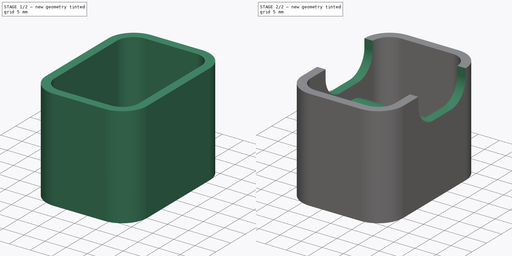
[diagram: build sequence overview — one tinted view per stage of 2, left to right]
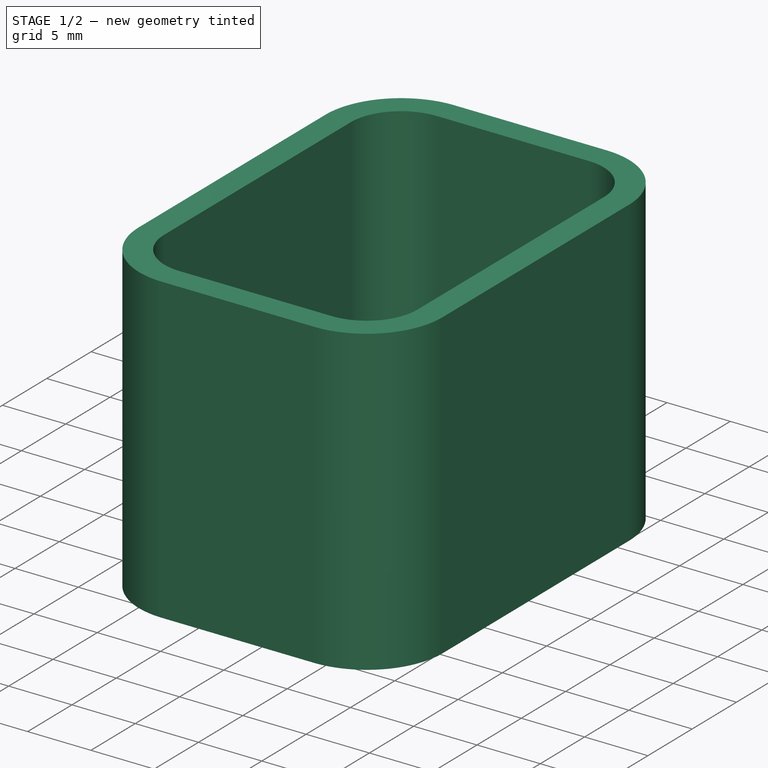
[diagram: stage 1 of 2 — iso view after this stage's code; geometry added in this stage tinted green]
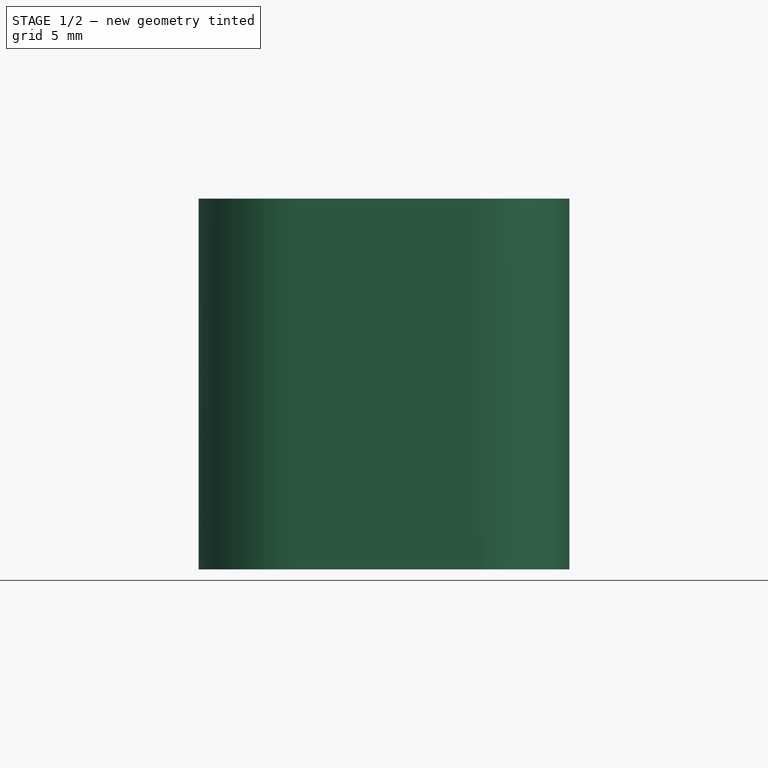
[diagram: stage 1 of 2 — front view after this stage's code; geometry added in this stage tinted green]
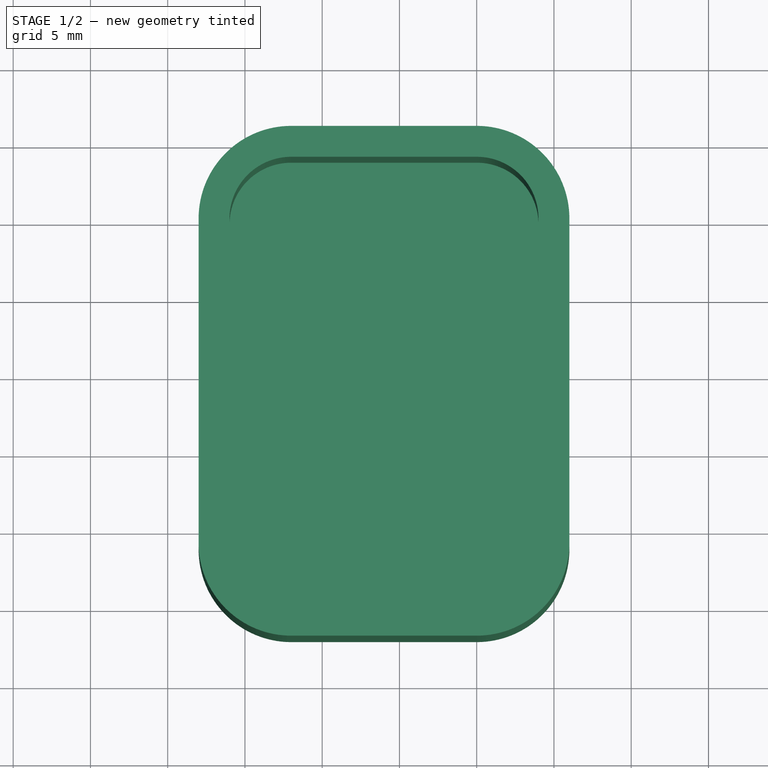
[diagram: stage 1 of 2 — top view after this stage's code; geometry added in this stage tinted green]
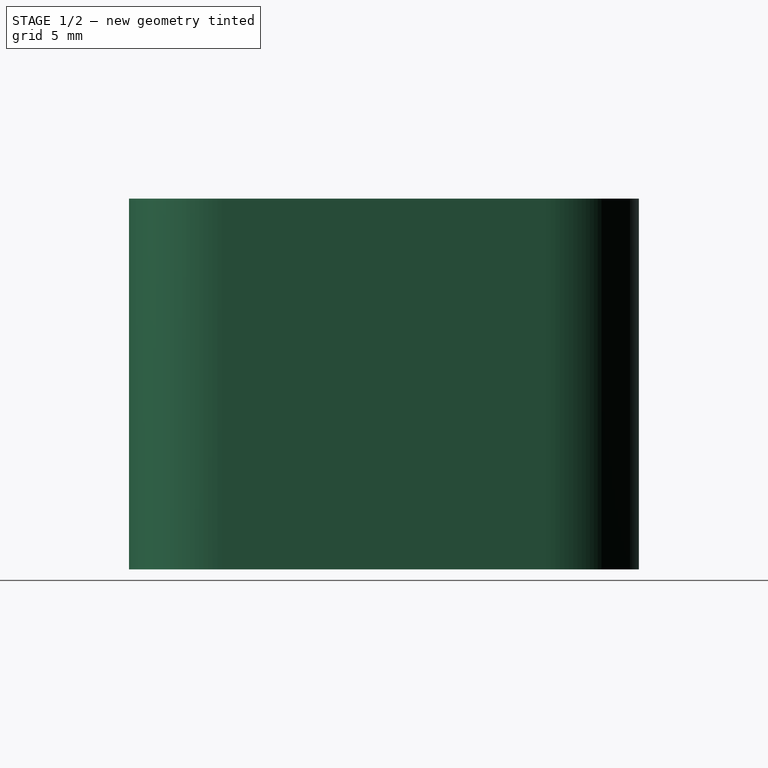
[diagram: stage 1 of 2 — right view after this stage's code; geometry added in this stage tinted green]
FCSTD DOCUMENT  (FreeCAD 0.16R6706 (Git))
Label: stand_v0.3
License: All rights reserved
LicenseURL: http://en.wikipedia.org/wiki/All_rights_reserved
objects: Sketcher::SketchObject×3, PartDesign::Pad×2, Part::Thickness×1, PartDesign::Pocket×1
note: 10 computed .brp shape members not serialized (recipe doc carries the construction recipe); baked Part::Feature solids carry a one-line shape summary decoded from their .brp

FEATURE [Sketcher::SketchObject] Sketch
  sketch-geometry (8):
    g0: LineSegment StartX=-12 StartY=29 StartZ=0 EndX=0 EndY=29 EndZ=0
    g1: LineSegment StartX=4 StartY=25 StartZ=0 EndX=4 EndY=4 EndZ=0
    g2: LineSegment StartX=0 StartY=0 StartZ=0 EndX=-12 EndY=0 EndZ=0
    g3: LineSegment StartX=-16 StartY=4 StartZ=0 EndX=-16 EndY=25 EndZ=0
    g4: ArcOfCircle CenterX=-12 CenterY=25 CenterZ=0 NormalX=0 NormalY=0 NormalZ=1 Radius=4 StartAngle=1.5708 EndAngle=3.14159
    g5: ArcOfCircle CenterX=-12 CenterY=4 CenterZ=0 NormalX=0 NormalY=0 NormalZ=1 Radius=4 StartAngle=3.14159 EndAngle=4.71239
    g6: ArcOfCircle CenterX=0 CenterY=25 CenterZ=0 NormalX=0 NormalY=0 NormalZ=1 Radius=4 StartAngle=0 EndAngle=1.5708
    g7: ArcOfCircle CenterX=0 CenterY=4 CenterZ=0 NormalX=0 NormalY=0 NormalZ=1 Radius=4 StartAngle=4.71239 EndAngle=6.28319
  constraints (19):
    c: Horizontal(g0)
    c: Horizontal(g2)
    c: Vertical(g1)
    c: Vertical(g3)
    c: Tangent(g0,g4) = 1.5708
    c: Tangent(g3,g4) = 1.5708
    c: Tangent(g3,g5) = 1.5708
    c: Tangent(g2,g5) = 1.5708
    c: Tangent(g0,g6) = 1.5708
    c: Tangent(g1,g6) = 1.5708
    c: Tangent(g2,g7) = 1.5708
    c: Tangent(g1,g7) = 1.5708
    c: Radius(g4) = 4
    c: Radius(g5) = 4
    c: Radius(g7) = 4
    c: Radius(g6) = 4
    c: DistanceY(g3,g3) = 21
    c: DistanceX(g0,g0) = 12
    c: Coincident(g2,g-1)
FEATURE [PartDesign::Pad] Pad
  Length = 22
  Length2 = 100
  Sketch = -> Sketch
  Type = 0
FEATURE [Part::Thickness] Thickness
  Faces = -> Pad [Face10]
  Intersection = false
  Join = 2
  Mode = 0
  SelfIntersection = false
  Value = 2
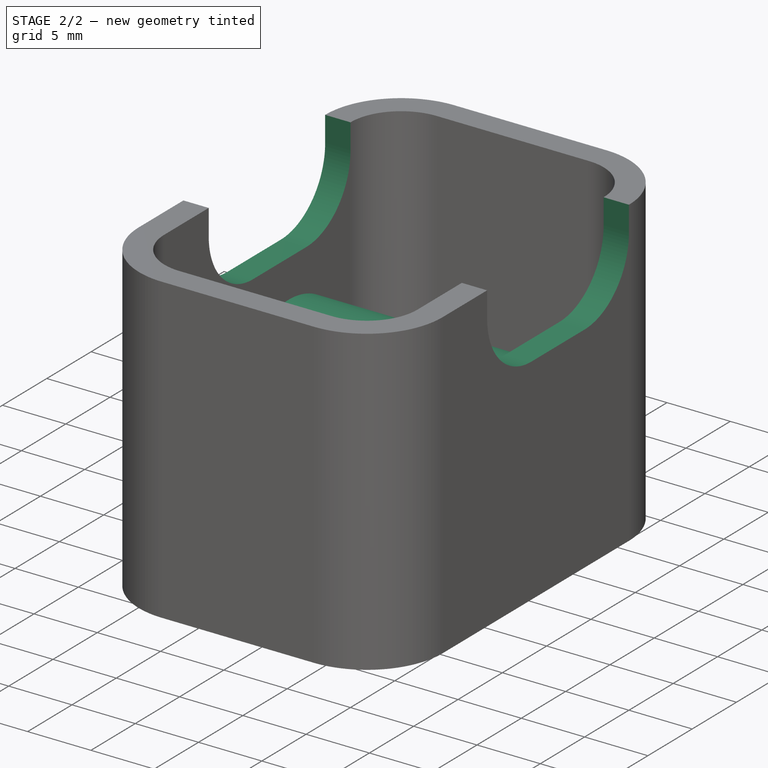
[diagram: stage 2 of 2 — iso view after this stage's code; geometry added in this stage tinted green]
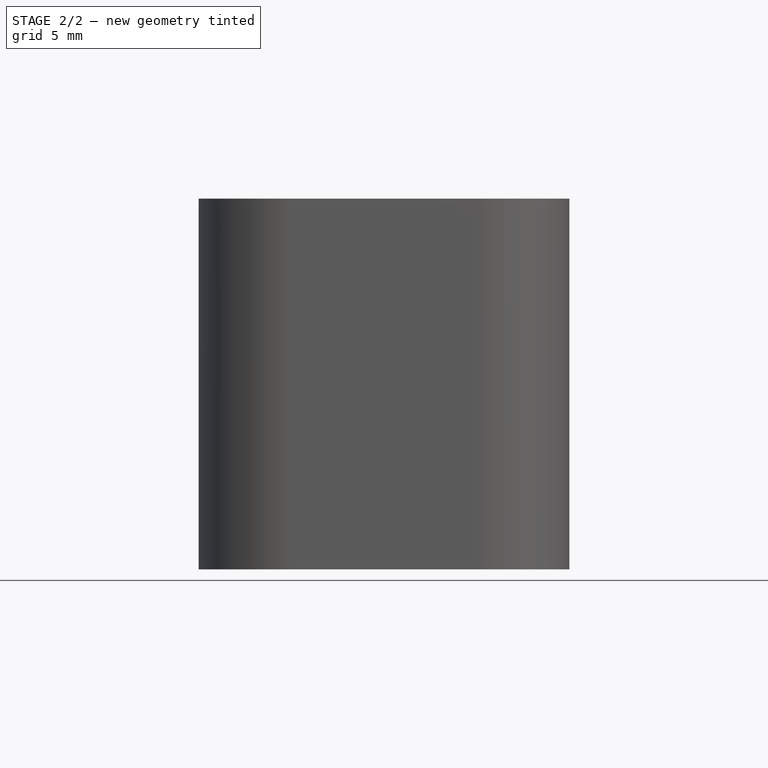
[diagram: stage 2 of 2 — front view after this stage's code; geometry added in this stage tinted green]
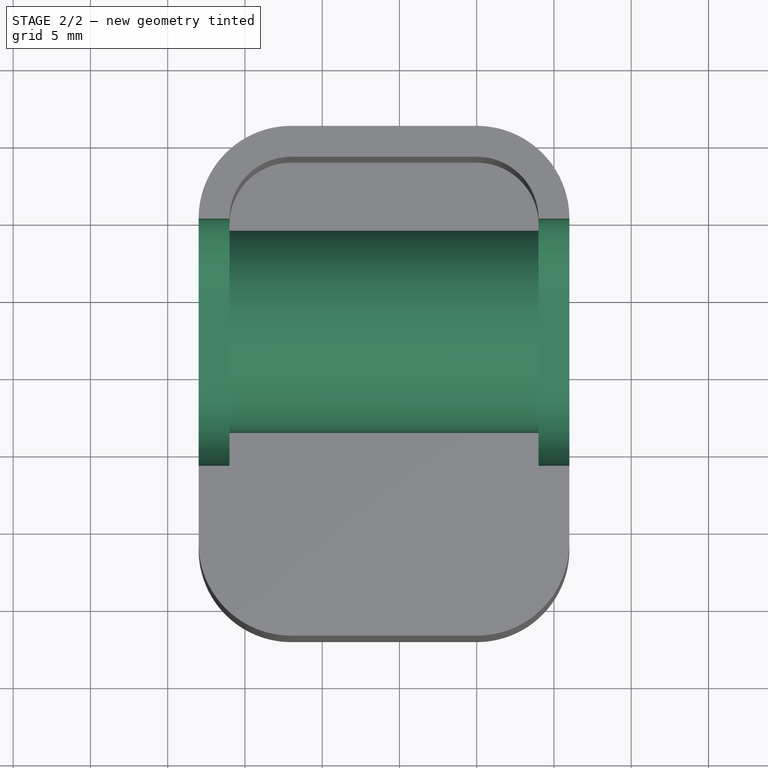
[diagram: stage 2 of 2 — top view after this stage's code; geometry added in this stage tinted green]
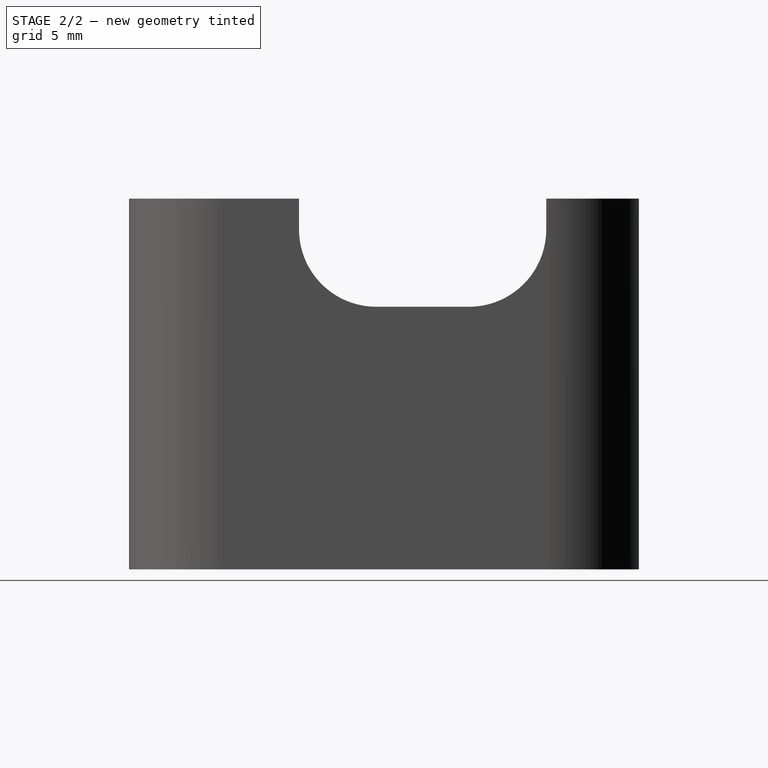
[diagram: stage 2 of 2 — right view after this stage's code; geometry added in this stage tinted green]
FEATURE [Sketcher::SketchObject] Sketch001
  ExternalGeometry = -> [Thickness]
  Placement = pos=(6,0,0) rot=(0.57735,0.57735,0.57735;2.0944rad)
  Support = -> Thickness [Face15]
  sketch-geometry (4):
    g0: ArcOfCircle CenterX=18 CenterY=5.5 CenterZ=0 NormalX=0 NormalY=0 NormalZ=1 Radius=6.5 StartAngle=0 EndAngle=3.14159
    g1: LineSegment StartX=11.5 StartY=5.5 StartZ=0 EndX=11.5 EndY=0 EndZ=0
    g2: LineSegment StartX=11.5 StartY=0 StartZ=0 EndX=24.5 EndY=0 EndZ=0
    g3: LineSegment StartX=24.5 StartY=5.5 StartZ=0 EndX=24.5 EndY=0 EndZ=0
  constraints (13):
    c: DistanceX(g0,g-3) = 11
    c: Radius(g0) = 6.5
    c: DistanceY(g-1,g2) = 0
    c: DistanceY(g-1,g2) = 0
    c: Coincident(g1,g2)
    c: Coincident(g2,g3)
    c: Coincident(g1,g0)
    c: Coincident(g3,g0)
    c: DistanceX(g2,g-3) = 4.5
    c: DistanceX(g2,g2) = 13
    c: DistanceY(g1,g1) = 5.5
    c: DistanceY(g3,g3) = 5.5
    c: DistanceY(g0,g0) = 0
FEATURE [PartDesign::Pad] Pad001
  Length = 10
  Length2 = 100
  Reversed = true
  Sketch = -> Sketch001
  Type = 1
FEATURE [Sketcher::SketchObject] Sketch002
  ExternalGeometry = -> [Pad001]
  Placement = pos=(6,0,0) rot=(0.57735,0.57735,0.57735;2.0944rad)
  Support = -> Pad001 [Face17]
  sketch-geometry (6):
    g0: LineSegment StartX=9 StartY=22 StartZ=0 EndX=25 EndY=22 EndZ=0
    g1: LineSegment StartX=25 StartY=22 StartZ=0 EndX=25 EndY=20 EndZ=0
    g2: LineSegment StartX=20 StartY=15 StartZ=0 EndX=14 EndY=15 EndZ=0
    g3: LineSegment StartX=9 StartY=20 StartZ=0 EndX=9 EndY=22 EndZ=0
    g4: ArcOfCircle CenterX=14 CenterY=20 CenterZ=0 NormalX=0 NormalY=0 NormalZ=1 Radius=5 StartAngle=3.14159 EndAngle=4.71239
    g5: ArcOfCircle CenterX=20 CenterY=20 CenterZ=0 NormalX=0 NormalY=0 NormalZ=1 Radius=5 StartAngle=4.71239 EndAngle=6.28319
  constraints (15):
    c: Coincident(g0,g1)
    c: Coincident(g3,g0)
    c: Horizontal(g0)
    c: Horizontal(g2)
    c: Vertical(g1)
    c: Vertical(g3)
    c: Tangent(g3,g4) = 1.5708
    c: Tangent(g2,g4) = 1.5708
    c: Tangent(g1,g5) = 1.5708
    c: Tangent(g2,g5) = 1.5708
    c: Coincident(g0,g-3)
    c: DistanceX(g0,g0) = 16
    c: Radius(g4) = 5
    c: Radius(g5) = 5
    c: DistanceY(g3,g3) = 2
FEATURE [PartDesign::Pocket] Pocket
  Length = 5
  Sketch = -> Sketch002
  Type = 1
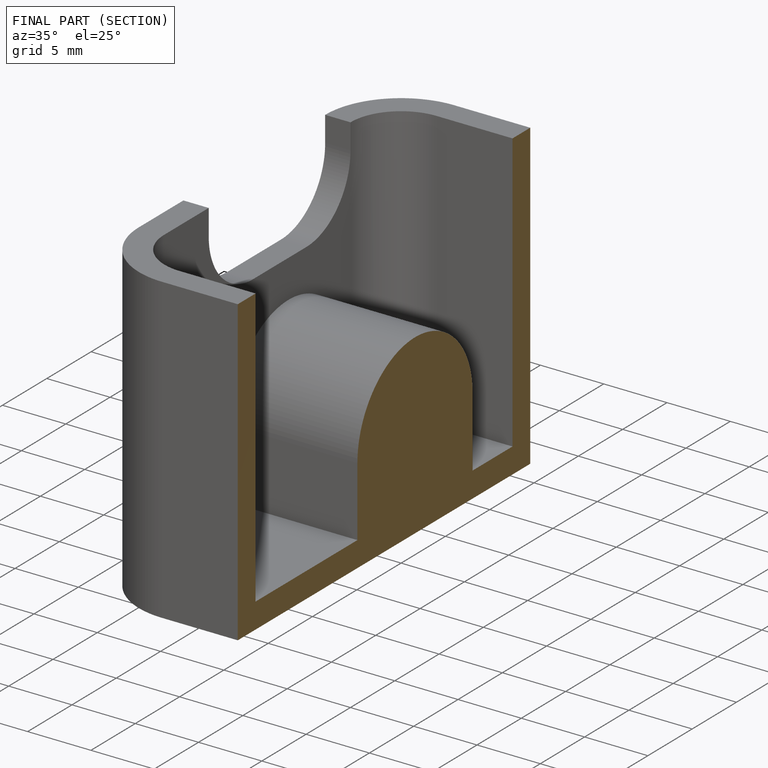
[diagram: finished part — half-section view (interior)]
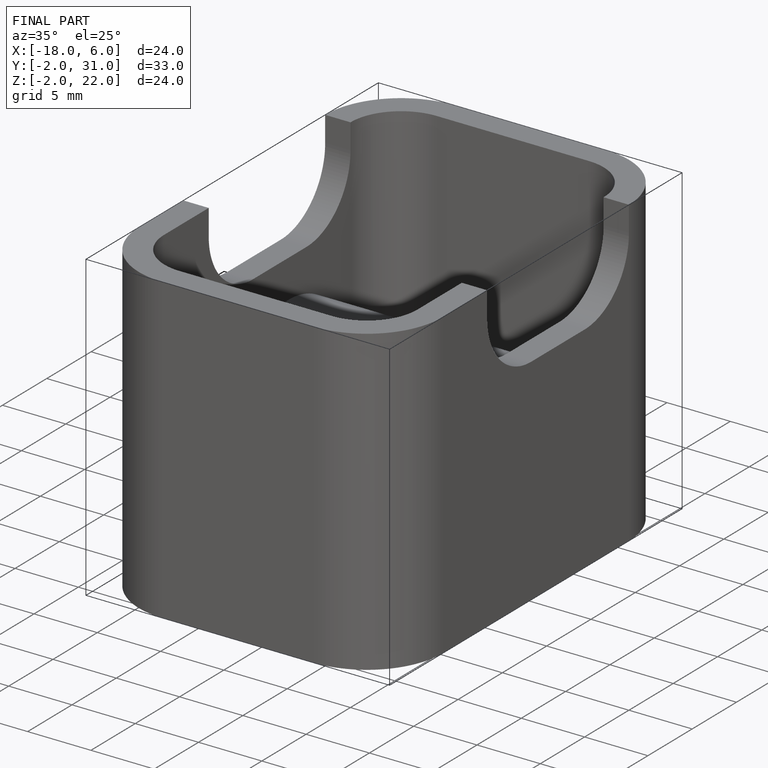
[diagram: finished part — iso view with bounding-box wireframe]
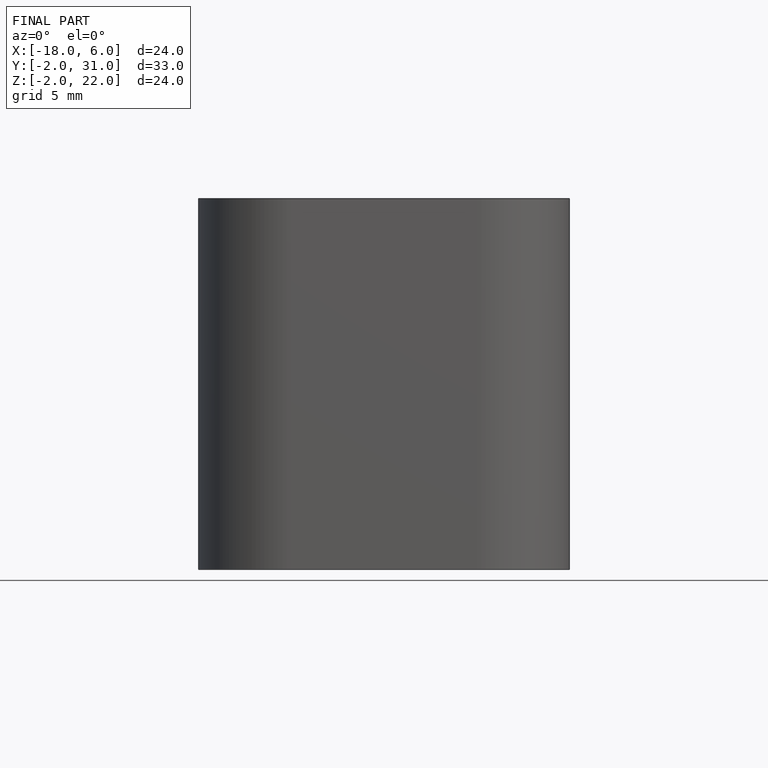
[diagram: finished part — front view with bounding-box wireframe]
